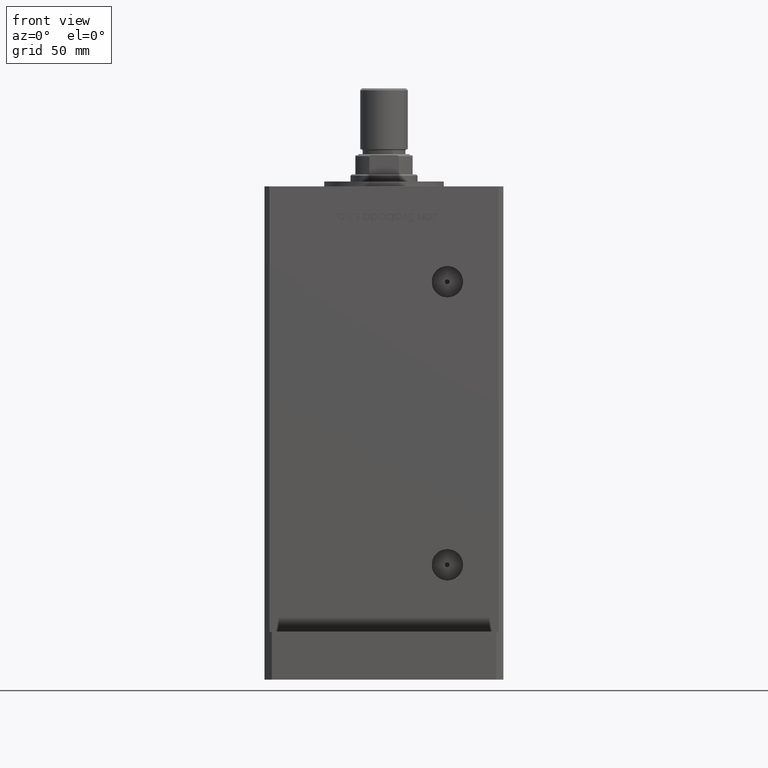
[diagram: clean part render]
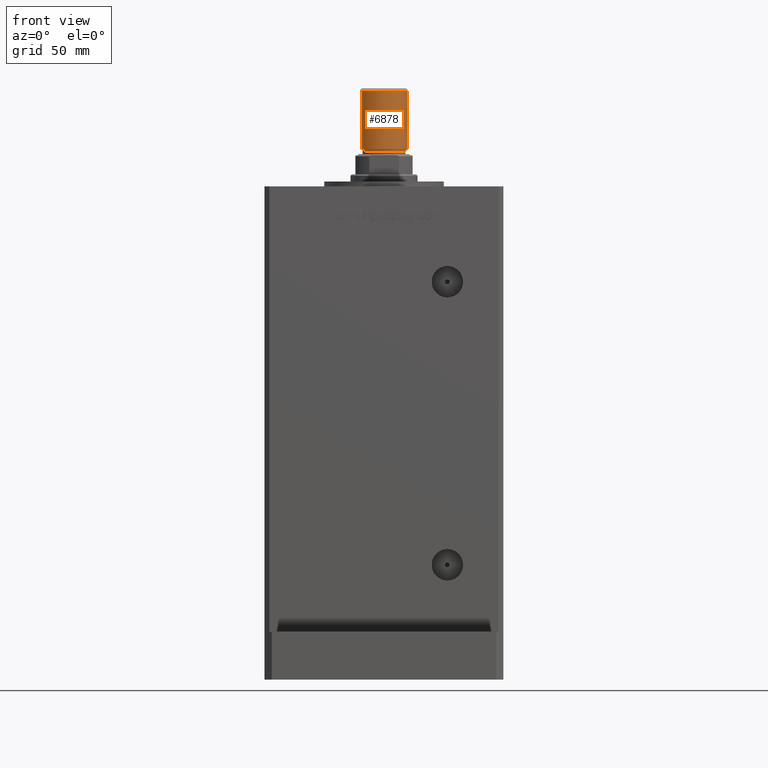
[diagram: same view with one face highlighted and labeled with its STEP entity id]
A machine part, front view. The second image highlights one B-rep face of the part: STEP entity #6878.
In plain terms, the highlighted cylindrical surface (edge-blend (fillet) strip) has radius 10 mm, axis along (0, 0, 1).
Its self-contained STEP definition (entity closure, byte-faithful):
#833 = EDGE_CURVE ( 'NONE', #52786, #43148, #40989, .T. ) ;
#3405 = CYLINDRICAL_SURFACE ( 'NONE', #35524, 10.00000000000000000 ) ;
#3901 = ORIENTED_EDGE ( 'NONE', *, *, #34069, .F. ) ;
#6878 = ADVANCED_FACE ( 'NONE', ( #23679 ), #3405, .T. ) ;
#9765 = LINE ( 'NONE', #31091, #47260 ) ;
#10657 = EDGE_LOOP ( 'NONE', ( #12141, #3901, #19833, #40574 ) ) ;
#11105 = DIRECTION ( 'NONE',  ( 1.000000000000000000, 0.000000000000000000, 0.000000000000000000 ) ) ;
#11316 = CARTESIAN_POINT ( 'NONE',  ( 0.000000000000000000, 0.000000000000000000, 0.7999999999999986011 ) ) ;
#12141 = ORIENTED_EDGE ( 'NONE', *, *, #833, .F. ) ;
#15471 = CIRCLE ( 'NONE', #43458, 10.00000000000000000 ) ;
#16015 = DIRECTION ( 'NONE',  ( -0.000000000000000000, -0.000000000000000000, -1.000000000000000000 ) ) ;
#16350 = CARTESIAN_POINT ( 'NONE',  ( 10.00000000000000000, 1.224646799147353256E-15, 25.50000000000000000 ) ) ;
#19833 = ORIENTED_EDGE ( 'NONE', *, *, #48581, .T. ) ;
#22541 = CARTESIAN_POINT ( 'NONE',  ( -10.00000000000000000, 0.000000000000000000, 0.7999999999999986011 ) ) ;
#23679 = FACE_OUTER_BOUND ( 'NONE', #10657, .T. ) ;
#25064 = AXIS2_PLACEMENT_3D ( 'NONE', #11316, #32108, #52344 ) ;
#26333 = CARTESIAN_POINT ( 'NONE',  ( 10.00000000000000000, 1.224646799147353256E-15, 25.50000000000000000 ) ) ;
#26437 = DIRECTION ( 'NONE',  ( -0.000000000000000000, -0.000000000000000000, -1.000000000000000000 ) ) ;
#28469 = VERTEX_POINT ( 'NONE', #22541 ) ;
#29425 = VERTEX_POINT ( 'NONE', #51758 ) ;
#30294 = EDGE_CURVE ( 'NONE', #28469, #43148, #44324, .T. ) ;
#31091 = CARTESIAN_POINT ( 'NONE',  ( -10.00000000000000000, 0.000000000000000000, 25.50000000000000000 ) ) ;
#32108 = DIRECTION ( 'NONE',  ( -0.000000000000000000, -0.000000000000000000, 1.000000000000000000 ) ) ;
#33303 = DIRECTION ( 'NONE',  ( -0.000000000000000000, -0.000000000000000000, -1.000000000000000000 ) ) ;
#34069 = EDGE_CURVE ( 'NONE', #29425, #52786, #15471, .T. ) ;
#35362 = VECTOR ( 'NONE', #33303, 1000.000000000000000 ) ;
#35524 = AXIS2_PLACEMENT_3D ( 'NONE', #36822, #16015, #49382 ) ;
#36822 = CARTESIAN_POINT ( 'NONE',  ( 0.000000000000000000, 0.000000000000000000, 25.50000000000000000 ) ) ;
#40574 = ORIENTED_EDGE ( 'NONE', *, *, #30294, .T. ) ;
#40989 = LINE ( 'NONE', #16350, #35362 ) ;
#43148 = VERTEX_POINT ( 'NONE', #47916 ) ;
#43458 = AXIS2_PLACEMENT_3D ( 'NONE', #48847, #49113, #11105 ) ;
#44324 = CIRCLE ( 'NONE', #25064, 10.00000000000000000 ) ;
#47260 = VECTOR ( 'NONE', #26437, 1000.000000000000000 ) ;
#47916 = CARTESIAN_POINT ( 'NONE',  ( 10.00000000000000000, 1.224646799147353256E-15, 0.7999999999999986011 ) ) ;
#48581 = EDGE_CURVE ( 'NONE', #29425, #28469, #9765, .T. ) ;
#48847 = CARTESIAN_POINT ( 'NONE',  ( 0.000000000000000000, 0.000000000000000000, 25.50000000000000000 ) ) ;
#49113 = DIRECTION ( 'NONE',  ( 0.000000000000000000, 0.000000000000000000, 1.000000000000000000 ) ) ;
#49382 = DIRECTION ( 'NONE',  ( -1.000000000000000000, 0.000000000000000000, 0.000000000000000000 ) ) ;
#51758 = CARTESIAN_POINT ( 'NONE',  ( -10.00000000000000000, 0.000000000000000000, 25.50000000000000000 ) ) ;
#52344 = DIRECTION ( 'NONE',  ( 1.000000000000000000, 0.000000000000000000, 0.000000000000000000 ) ) ;
#52786 = VERTEX_POINT ( 'NONE', #26333 ) ;